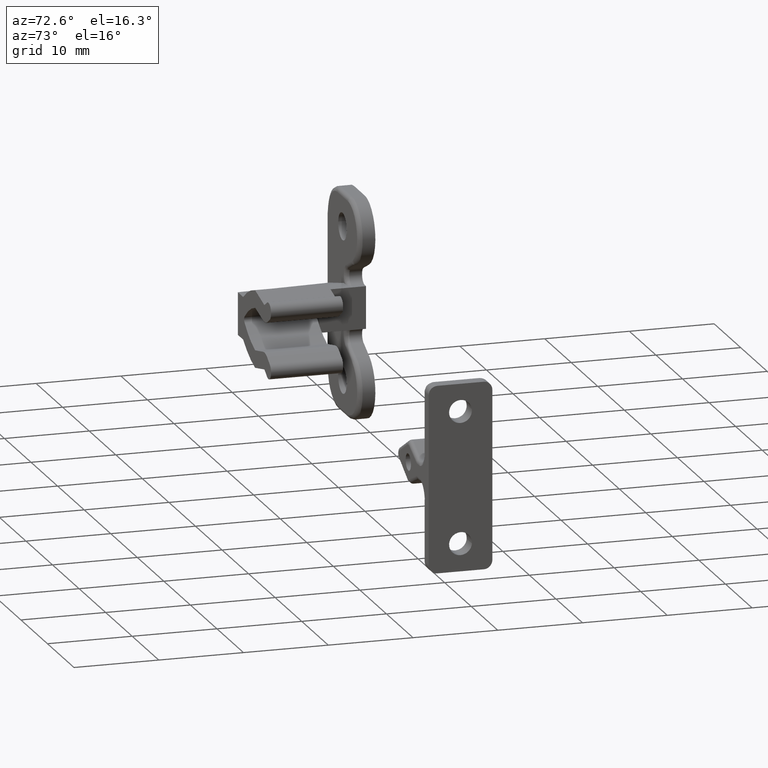
[diagram: clean part render]
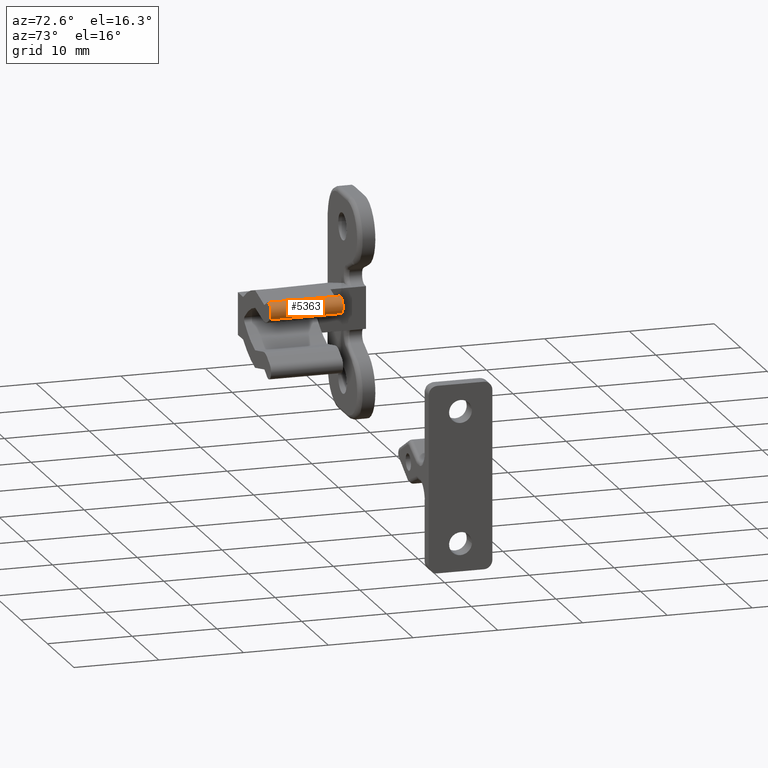
[diagram: same view with one face highlighted and labeled with its STEP entity id]
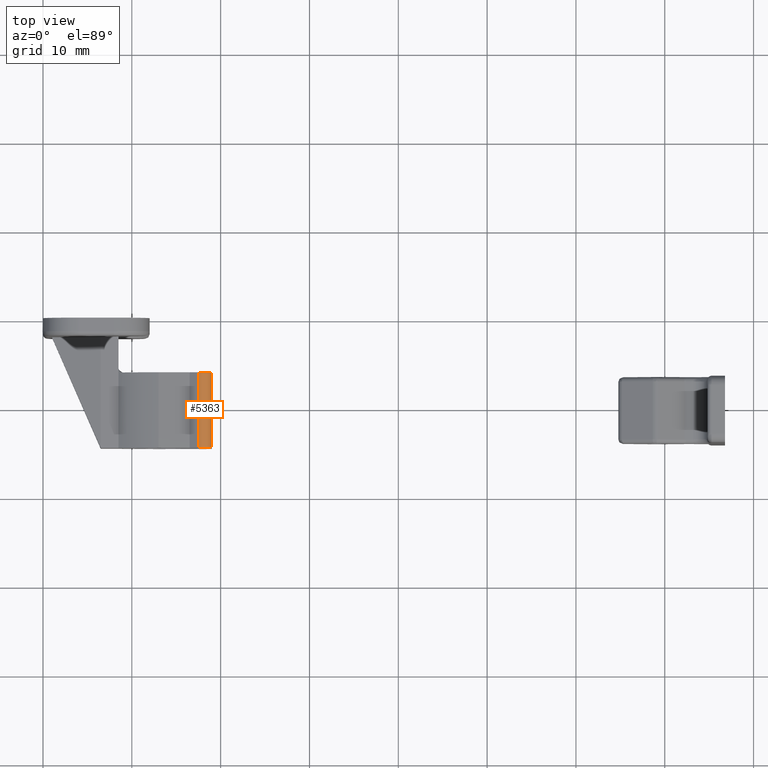
[diagram: same view with one face highlighted and labeled with its STEP entity id]
A machine part, auxiliary view. The second image highlights one B-rep face of the part: STEP entity #5363.
A second angle (top view) of the same face is appended — the face is thin or edge-on in the first view.
In plain terms, the highlighted face is a freeform B-spline surface patch.
Its self-contained STEP definition (entity closure, byte-faithful):
#5280=CARTESIAN_POINT('',(17.501353131438350,-6.0,4.349524226376585));
#5281=VERTEX_POINT('',#5280);
#5288=CARTESIAN_POINT('',(17.501353131438350,-14.500000000000179,4.349524226376585));
#5289=VERTEX_POINT('',#5288);
#5295=CARTESIAN_POINT('',(17.501353131438350,-14.500000000000179,4.349524226376585));
#5296=CARTESIAN_POINT('',(17.501353131438350,-6.0,4.349524226376585));
#5297=QUASI_UNIFORM_CURVE('',1,(#5295,#5296),.UNSPECIFIED.,.F.,.U.);
#5298=EDGE_CURVE('',#5289,#5281,#5297,.T.);
#5303=CARTESIAN_POINT('',(18.492424170999978,-14.712500000000190,2.612363649689001));
#5304=CARTESIAN_POINT('',(18.492424170999978,-5.782187499999994,2.612363649689001));
#5305=CARTESIAN_POINT('',(19.385868929530027,-14.712500000000185,3.117851200717699));
#5306=CARTESIAN_POINT('',(19.385868929530027,-5.782187499999995,3.117851200717699));
#5307=CARTESIAN_POINT('',(18.857166939200251,-14.712500000000190,3.997757676549718));
#5308=CARTESIAN_POINT('',(18.857166939200251,-5.782187499999994,3.997757676549718));
#5309=CARTESIAN_POINT('',(18.328464948870476,-14.712500000000185,4.877664152381741));
#5310=CARTESIAN_POINT('',(18.328464948870476,-5.782187499999995,4.877664152381741));
#5311=CARTESIAN_POINT('',(17.462699799682699,-14.712500000000190,4.326110068685807));
#5312=CARTESIAN_POINT('',(17.462699799682699,-5.782187499999994,4.326110068685807));
#5320=(BOUNDED_SURFACE()B_SPLINE_SURFACE(1,2,((#5303,#5305,#5307,#5309,#5311),(#5304,#5306,#5308,#5310,#5312)),.UNSPECIFIED.,.F.,.F.,.U.)B_SPLINE_SURFACE_WITH_KNOTS((2,2),(3,2,3),(0.0,8.930312500000195),(0.0,1.0,2.0),.UNSPECIFIED.)GEOMETRIC_REPRESENTATION_ITEM()RATIONAL_B_SPLINE_SURFACE(((1.0,0.697790459841680,1.0,0.697790459841680,1.0),(1.0,0.697790459841680,1.0,0.697790459841680,1.0)))REPRESENTATION_ITEM('')SURFACE());
#5321=CARTESIAN_POINT('',(18.500000000000000,-6.0,2.616695000000000));
#5322=VERTEX_POINT('',#5321);
#5323=CARTESIAN_POINT('',(18.500000000000000,-6.0,2.616695000000000));
#5324=CARTESIAN_POINT('',(19.365348752451165,-5.999999999999999,3.116305144466065));
#5325=CARTESIAN_POINT('',(18.866415100074001,-6.0,3.982043417001985));
#5326=CARTESIAN_POINT('',(18.367481447696839,-5.999999999999999,4.847781689537904));
#5327=CARTESIAN_POINT('',(17.501353131438350,-6.0,4.349524226376585));
#5335=(BOUNDED_CURVE()B_SPLINE_CURVE(2,(#5323,#5324,#5325,#5326,#5327),.UNSPECIFIED.,.F.,.U.)B_SPLINE_CURVE_WITH_KNOTS((3,2,3),(0.0,0.500000000000000,1.0),.UNSPECIFIED.)CURVE()GEOMETRIC_REPRESENTATION_ITEM()RATIONAL_B_SPLINE_CURVE((1.0,0.707382933753947,1.0,0.707382933753947,1.0))REPRESENTATION_ITEM(''));
#5336=EDGE_CURVE('',#5322,#5281,#5335,.T.);
#5337=ORIENTED_EDGE('',*,*,#5336,.T.);
#5338=ORIENTED_EDGE('',*,*,#5298,.F.);
#5339=CARTESIAN_POINT('',(18.500000000000000,-14.500000000000179,2.616695000000000));
#5340=VERTEX_POINT('',#5339);
#5341=CARTESIAN_POINT('',(18.500000000000000,-14.500000000000179,2.616695000000000));
#5342=CARTESIAN_POINT('',(19.365348752451165,-14.500000000000187,3.116305144466065));
#5343=CARTESIAN_POINT('',(18.866415100074001,-14.500000000000179,3.982043417001985));
#5344=CARTESIAN_POINT('',(18.367481447696839,-14.500000000000187,4.847781689537904));
#5345=CARTESIAN_POINT('',(17.501353131438350,-14.500000000000179,4.349524226376585));
#5353=(BOUNDED_CURVE()B_SPLINE_CURVE(2,(#5341,#5342,#5343,#5344,#5345),.UNSPECIFIED.,.F.,.U.)B_SPLINE_CURVE_WITH_KNOTS((3,2,3),(0.0,0.500000000000000,1.0),.UNSPECIFIED.)CURVE()GEOMETRIC_REPRESENTATION_ITEM()RATIONAL_B_SPLINE_CURVE((1.0,0.707382933753947,1.0,0.707382933753947,1.0))REPRESENTATION_ITEM(''));
#5354=EDGE_CURVE('',#5340,#5289,#5353,.T.);
#5355=ORIENTED_EDGE('',*,*,#5354,.F.);
#5356=CARTESIAN_POINT('',(18.500000000000000,-14.500000000000179,2.616695000000000));
#5357=CARTESIAN_POINT('',(18.500000000000000,-6.0,2.616695000000000));
#5358=QUASI_UNIFORM_CURVE('',1,(#5356,#5357),.UNSPECIFIED.,.F.,.U.);
#5359=EDGE_CURVE('',#5340,#5322,#5358,.T.);
#5360=ORIENTED_EDGE('',*,*,#5359,.T.);
#5361=EDGE_LOOP('',(#5337,#5338,#5355,#5360));
#5362=FACE_OUTER_BOUND('',#5361,.T.);
#5363=ADVANCED_FACE('',(#5362),#5320,.T.);